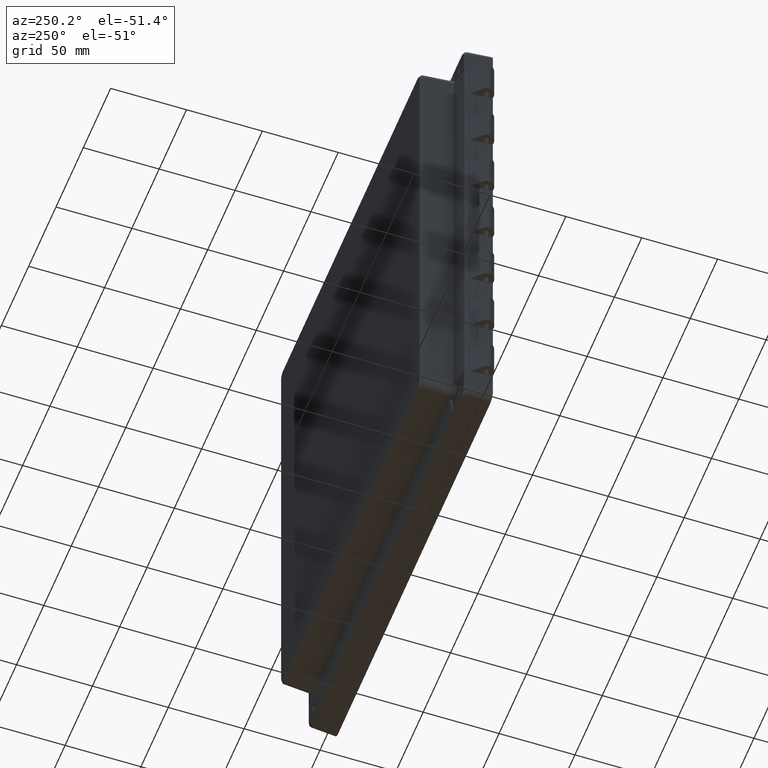
[diagram: clean part render]
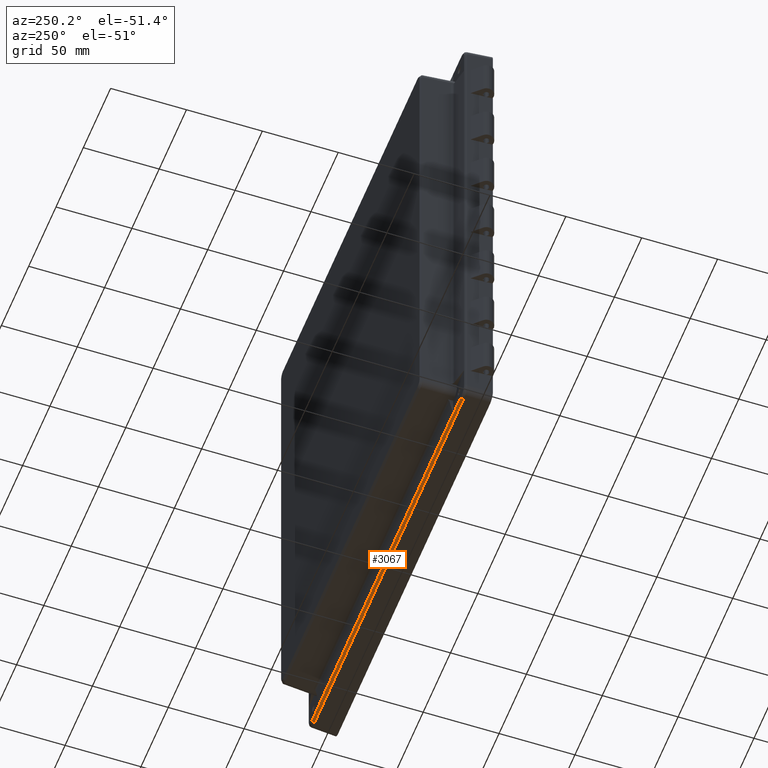
[diagram: same view with one face highlighted and labeled with its STEP entity id]
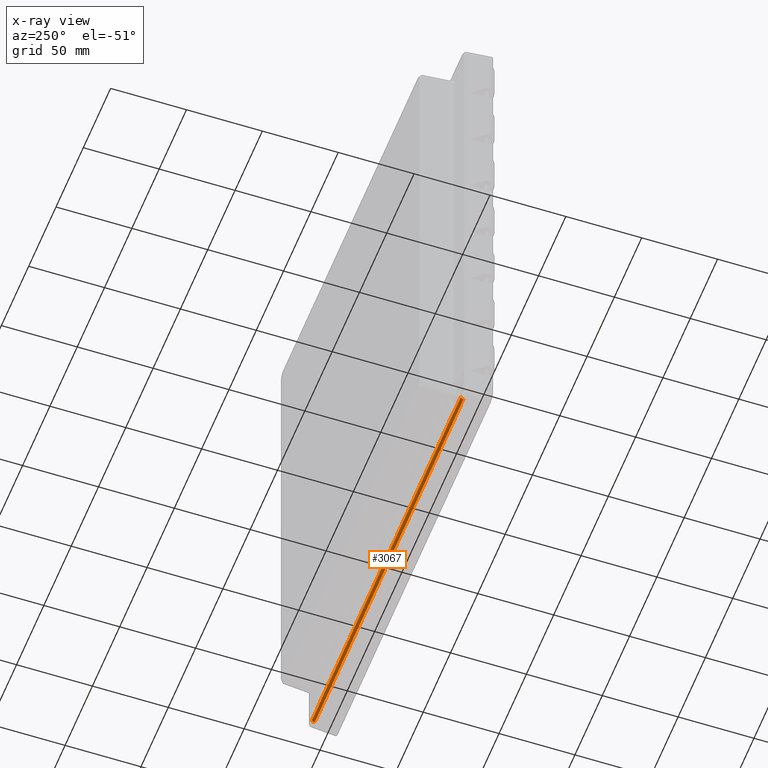
[diagram: x-ray of the same camera — body ghosted, the highlighted face saturated]
A machine part, auxiliary view. The second image highlights one B-rep face of the part: STEP entity #3067.
The next image is the same camera in x-ray: the body ghosted, the highlighted face saturated — about 0% of this face is hidden behind the body in this view.
In plain terms, the highlighted cylindrical surface (edge-blend (fillet) strip) has radius 2 mm, axis along (1, 0, 0).
Its self-contained STEP definition (entity closure, byte-faithful):
#214 = DIRECTION ( 'NONE',  ( 1.000000000000000000, 0.0000000000000000000, 0.0000000000000000000 ) ) ;
#215 = VECTOR ( 'NONE', #214, 1000.000000000000000 ) ;
#216 = CARTESIAN_POINT ( 'NONE',  ( 137.8162624004990000, 8.467449213979877600, -170.0562397905033500 ) ) ;
#217 = LINE ( 'NONE', #216, #215 ) ;
#2008 = VERTEX_POINT ( 'NONE', #6079 ) ;
#2068 = VERTEX_POINT ( 'NONE', #6278 ) ;
#2107 = VERTEX_POINT ( 'NONE', #6312 ) ;
#2109 = EDGE_CURVE ( 'NONE', #2159, #2107, #6328, .T. ) ;
#2123 = EDGE_CURVE ( 'NONE', #2008, #2068, #6340, .T. ) ;
#2159 = VERTEX_POINT ( 'NONE', #6419 ) ;
#2212 = EDGE_CURVE ( 'NONE', #2213, #2008, #6556, .T. ) ;
#2213 = VERTEX_POINT ( 'NONE', #6551 ) ;
#2287 = EDGE_CURVE ( 'NONE', #2288, #2107, #6879, .T. ) ;
#2288 = VERTEX_POINT ( 'NONE', #6874 ) ;
#3051 = ORIENTED_EDGE ( 'NONE', *, *, #2109, .T. ) ;
#3052 = ORIENTED_EDGE ( 'NONE', *, *, #2287, .F. ) ;
#3053 = ORIENTED_EDGE ( 'NONE', *, *, #3735, .F. ) ;
#3054 = ORIENTED_EDGE ( 'NONE', *, *, #2212, .T. ) ;
#3055 = ORIENTED_EDGE ( 'NONE', *, *, #2123, .T. ) ;
#3067 = ADVANCED_FACE ( 'NONE', ( #8293 ), #8292, .T. ) ;
#3068 = EDGE_LOOP ( 'NONE', ( #3069, #3071, #3072, #3051, #3052, #3053, #3054, #3055 ) ) ;
#3069 = ORIENTED_EDGE ( 'NONE', *, *, #3070, .F. ) ;
#3070 = EDGE_CURVE ( 'NONE', #3649, #2068, #8287, .T. ) ;
#3071 = ORIENTED_EDGE ( 'NONE', *, *, #3575, .F. ) ;
#3072 = ORIENTED_EDGE ( 'NONE', *, *, #3073, .F. ) ;
#3073 = EDGE_CURVE ( 'NONE', #2159, #3572, #8280, .T. ) ;
#3572 = VERTEX_POINT ( 'NONE', #9037 ) ;
#3575 = EDGE_CURVE ( 'NONE', #3572, #3649, #9035, .T. ) ;
#3649 = VERTEX_POINT ( 'NONE', #9191 ) ;
#3735 = EDGE_CURVE ( 'NONE', #2213, #2288, #217, .T. ) ;
#6079 = CARTESIAN_POINT ( 'NONE',  ( -136.3151442959592400, 10.26305314132472700, -168.6826406704503000 ) ) ;
#6278 = CARTESIAN_POINT ( 'NONE',  ( -122.4347589717227000, 10.26305314132473100, -168.6826406704503000 ) ) ;
#6305 = DIRECTION ( 'NONE',  ( 1.000000000000000000, 0.0000000000000000000, 0.0000000000000000000 ) ) ;
#6306 = VECTOR ( 'NONE', #6305, 1000.000000000000000 ) ;
#6307 = CARTESIAN_POINT ( 'NONE',  ( 143.8500000000000800, 10.26305314132472700, -168.6826406704503000 ) ) ;
#6312 = CARTESIAN_POINT ( 'NONE',  ( 136.3151442959592100, 10.26305314132472700, -168.6826406704503000 ) ) ;
#6328 = LINE ( 'NONE', #6307, #6306 ) ;
#6337 = DIRECTION ( 'NONE',  ( 1.000000000000000000, 0.0000000000000000000, 0.0000000000000000000 ) ) ;
#6338 = VECTOR ( 'NONE', #6337, 1000.000000000000000 ) ;
#6339 = CARTESIAN_POINT ( 'NONE',  ( 143.8500000000000800, 10.26305314132472700, -168.6826406704503000 ) ) ;
#6340 = LINE ( 'NONE', #6339, #6338 ) ;
#6419 = CARTESIAN_POINT ( 'NONE',  ( 122.4347589717226700, 10.26305314132473100, -168.6826406704503000 ) ) ;
#6551 = CARTESIAN_POINT ( 'NONE',  ( -136.3151442959592100, 8.467449213979877600, -170.0562397905033500 ) ) ;
#6552 = DIRECTION ( 'NONE',  ( 0.0000000000000000000, 0.0000000000000000000, -1.000000000000000000 ) ) ;
#6553 = DIRECTION ( 'NONE',  ( 1.000000000000000000, 0.0000000000000000000, 0.0000000000000000000 ) ) ;
#6554 = CARTESIAN_POINT ( 'NONE',  ( -136.3151442959592100, 8.362777301493990100, -168.0589807209942100 ) ) ;
#6555 = AXIS2_PLACEMENT_3D ( 'NONE', #6554, #6553, #6552 ) ;
#6556 = CIRCLE ( 'NONE', #6555, 2.000000000000001800 ) ;
#6874 = CARTESIAN_POINT ( 'NONE',  ( 136.3151442959592400, 8.467449213979877600, -170.0562397905033500 ) ) ;
#6875 = DIRECTION ( 'NONE',  ( 0.0000000000000000000, 0.0000000000000000000, -1.000000000000000000 ) ) ;
#6876 = DIRECTION ( 'NONE',  ( 1.000000000000000000, 0.0000000000000000000, 0.0000000000000000000 ) ) ;
#6877 = CARTESIAN_POINT ( 'NONE',  ( 136.3151442959592400, 8.362777301493990100, -168.0589807209942100 ) ) ;
#6878 = AXIS2_PLACEMENT_3D ( 'NONE', #6877, #6876, #6875 ) ;
#6879 = CIRCLE ( 'NONE', #6878, 2.000000000000001800 ) ;
#8277 = CARTESIAN_POINT ( 'NONE',  ( 122.4326056928570000, 10.30414014968805600, -168.5450553014458100 ) ) ;
#8278 = CARTESIAN_POINT ( 'NONE',  ( 122.4335852558908900, 10.28544897354371700, -168.6144011451837600 ) ) ;
#8279 = CARTESIAN_POINT ( 'NONE',  ( 122.4347589717226700, 10.26305314132473100, -168.6826406704503000 ) ) ;
#8280 =( BOUNDED_CURVE ( )  B_SPLINE_CURVE ( 3, ( #8279, #8278, #8277, #8317 ),
 .UNSPECIFIED., .F., .T. ) 
 B_SPLINE_CURVE_WITH_KNOTS ( ( 4, 4 ),
 ( 2.824474218724712900, 2.932153143350477700 ),
 .UNSPECIFIED. ) 
 CURVE ( )  GEOMETRIC_REPRESENTATION_ITEM ( )  RATIONAL_B_SPLINE_CURVE ( ( 1.000000000000000000, 0.9990340041431358100, 0.9990340041431358100, 1.000000000000000000 ) ) 
 REPRESENTATION_ITEM ( '' )  );
#8283 = CARTESIAN_POINT ( 'NONE',  ( -122.4347589717227000, 10.26305314132473100, -168.6826406704503000 ) ) ;
#8284 = CARTESIAN_POINT ( 'NONE',  ( -122.4335852558909000, 10.28544897354371600, -168.6144011451837600 ) ) ;
#8285 = CARTESIAN_POINT ( 'NONE',  ( -122.4326056928570100, 10.30414014968805600, -168.5450553014458100 ) ) ;
#8286 = CARTESIAN_POINT ( 'NONE',  ( -122.4318231213824500, 10.31907250296160500, -168.4748041026297200 ) ) ;
#8287 =( BOUNDED_CURVE ( )  B_SPLINE_CURVE ( 3, ( #8286, #8285, #8284, #8283 ),
 .UNSPECIFIED., .F., .T. ) 
 B_SPLINE_CURVE_WITH_KNOTS ( ( 4, 4 ),
 ( 0.2094395102393153100, 0.3171184348650806800 ),
 .UNSPECIFIED. ) 
 CURVE ( )  GEOMETRIC_REPRESENTATION_ITEM ( )  RATIONAL_B_SPLINE_CURVE ( ( 1.000000000000000000, 0.9990340041431358100, 0.9990340041431358100, 1.000000000000000000 ) ) 
 REPRESENTATION_ITEM ( '' )  );
#8288 = DIRECTION ( 'NONE',  ( 0.0000000000000000000, 0.0000000000000000000, -1.000000000000000000 ) ) ;
#8289 = DIRECTION ( 'NONE',  ( 1.000000000000000000, 0.0000000000000000000, 0.0000000000000000000 ) ) ;
#8290 = CARTESIAN_POINT ( 'NONE',  ( 143.8500000000000800, 8.362777301493990100, -168.0589807209942100 ) ) ;
#8291 = AXIS2_PLACEMENT_3D ( 'NONE', #8290, #8289, #8288 ) ;
#8292 = CYLINDRICAL_SURFACE ( 'NONE', #8291, 2.000000000000001800 ) ;
#8293 = FACE_OUTER_BOUND ( 'NONE', #3068, .T. ) ;
#8317 = CARTESIAN_POINT ( 'NONE',  ( 122.4318231213824400, 10.31907250296160500, -168.4748041026297200 ) ) ;
#9032 = DIRECTION ( 'NONE',  ( -1.000000000000000000, 0.0000000000000000000, 0.0000000000000000000 ) ) ;
#9033 = VECTOR ( 'NONE', #9032, 1000.000000000000000 ) ;
#9034 = CARTESIAN_POINT ( 'NONE',  ( -137.8162624004991100, 10.31907250296160500, -168.4748041026297200 ) ) ;
#9035 = LINE ( 'NONE', #9034, #9033 ) ;
#9037 = CARTESIAN_POINT ( 'NONE',  ( 122.4318231213824400, 10.31907250296160500, -168.4748041026297200 ) ) ;
#9191 = CARTESIAN_POINT ( 'NONE',  ( -122.4318231213824500, 10.31907250296160500, -168.4748041026297200 ) ) ;